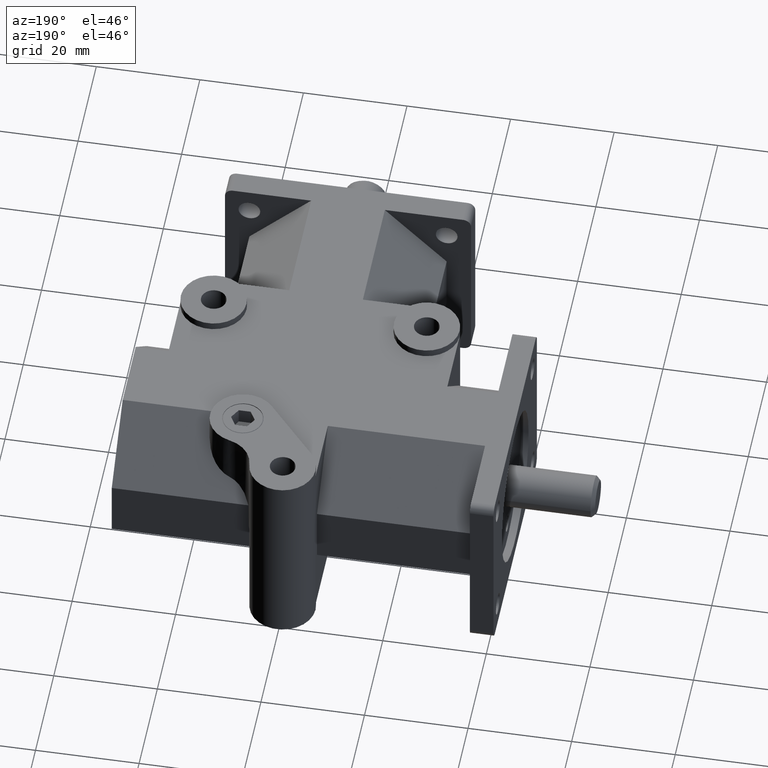
[diagram: clean part render]
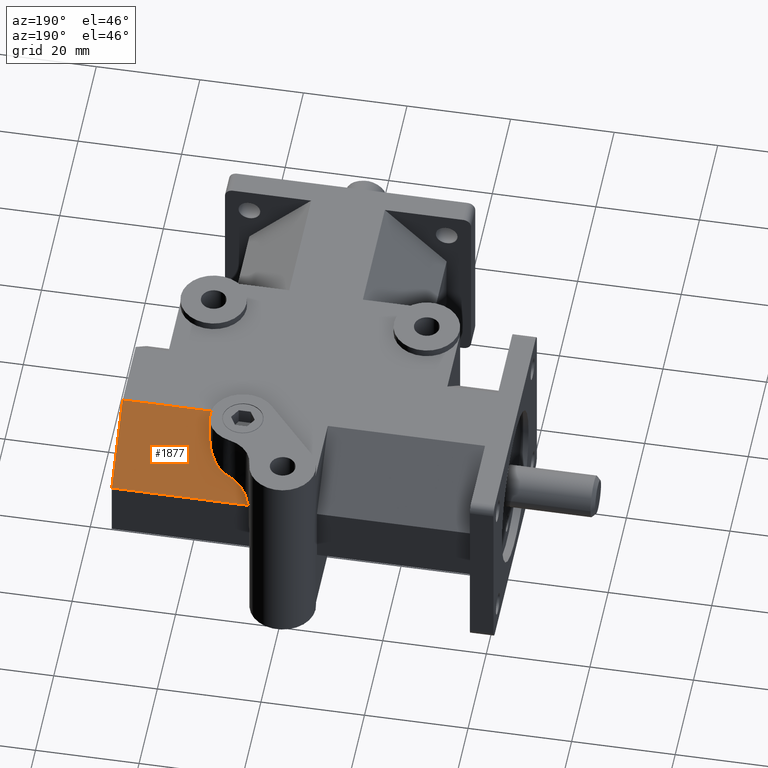
[diagram: same view with one face highlighted and labeled with its STEP entity id]
A machine part, auxiliary view. The second image highlights one B-rep face of the part: STEP entity #1877.
In plain terms, the highlighted planar face has unit normal (0, 0.7071, 0.7071).
Its self-contained STEP definition (entity closure, byte-faithful):
#15=ELLIPSE('',#2078,8.98025612106915,6.35);
#16=ELLIPSE('',#2079,8.98025612106915,6.35);
#104=PLANE('',#2077);
#205=FACE_OUTER_BOUND('',#340,.T.);
#340=EDGE_LOOP('',(#1663,#1664,#1665,#1666,#1667));
#514=LINE('',#2925,#687);
#550=LINE('',#3015,#723);
#556=LINE('',#3026,#729);
#687=VECTOR('',#2361,1.);
#723=VECTOR('',#2439,1.);
#729=VECTOR('',#2447,1.);
#893=VERTEX_POINT('',#2922);
#894=VERTEX_POINT('',#2924);
#927=VERTEX_POINT('',#3013);
#931=VERTEX_POINT('',#3024);
#963=VERTEX_POINT('',#3163);
#1092=EDGE_CURVE('',#894,#893,#514,.T.);
#1138=EDGE_CURVE('',#893,#927,#550,.T.);
#1144=EDGE_CURVE('',#927,#931,#556,.T.);
#1212=EDGE_CURVE('',#931,#963,#15,.T.);
#1213=EDGE_CURVE('',#963,#894,#16,.T.);
#1663=ORIENTED_EDGE('',*,*,#1138,.T.);
#1664=ORIENTED_EDGE('',*,*,#1144,.T.);
#1665=ORIENTED_EDGE('',*,*,#1212,.T.);
#1666=ORIENTED_EDGE('',*,*,#1213,.T.);
#1667=ORIENTED_EDGE('',*,*,#1092,.T.);
#1877=ADVANCED_FACE('',(#205),#104,.T.);
#2077=AXIS2_PLACEMENT_3D('',#3162,#2602,#2603);
#2078=AXIS2_PLACEMENT_3D('',#3164,#2604,#2605);
#2079=AXIS2_PLACEMENT_3D('',#3165,#2606,#2607);
#2361=DIRECTION('',(1.,0.,0.));
#2439=DIRECTION('',(0.,0.707106781186548,-0.707106781186547));
#2447=DIRECTION('',(-1.,0.,0.));
#2602=DIRECTION('center_axis',(0.,0.707106781186547,0.707106781186548));
#2603=DIRECTION('ref_axis',(-1.,0.,0.));
#2604=DIRECTION('center_axis',(0.,0.707106781186547,0.707106781186548));
#2605=DIRECTION('ref_axis',(0.,0.707106781186548,-0.707106781186547));
#2606=DIRECTION('center_axis',(0.,-0.707106781186547,-0.707106781186548));
#2607=DIRECTION('ref_axis',(0.,0.707106781186548,-0.707106781186547));
#2922=CARTESIAN_POINT('',(33.274,62.6745,17.526));
#2924=CARTESIAN_POINT('',(15.5762471251628,62.6745,17.526));
#2925=CARTESIAN_POINT('',(3.175,62.6745,17.526));
#3013=CARTESIAN_POINT('',(33.274,74.6125,5.588));
#3015=CARTESIAN_POINT('',(33.274,126.943728343696,-46.7432283436956));
#3024=CARTESIAN_POINT('',(6.89426494763999,74.6125,5.588));
#3026=CARTESIAN_POINT('',(3.175,74.6125,5.588));
#3162=CARTESIAN_POINT('Origin',(3.175,68.6435,11.557));
#3163=CARTESIAN_POINT('',(11.149182667989,71.1314759405359,9.06902405946408));
#3164=CARTESIAN_POINT('Origin',(12.646365335978,77.3024518810719,2.89804811892812));
#3165=CARTESIAN_POINT('Origin',(9.652,64.9605,15.24));